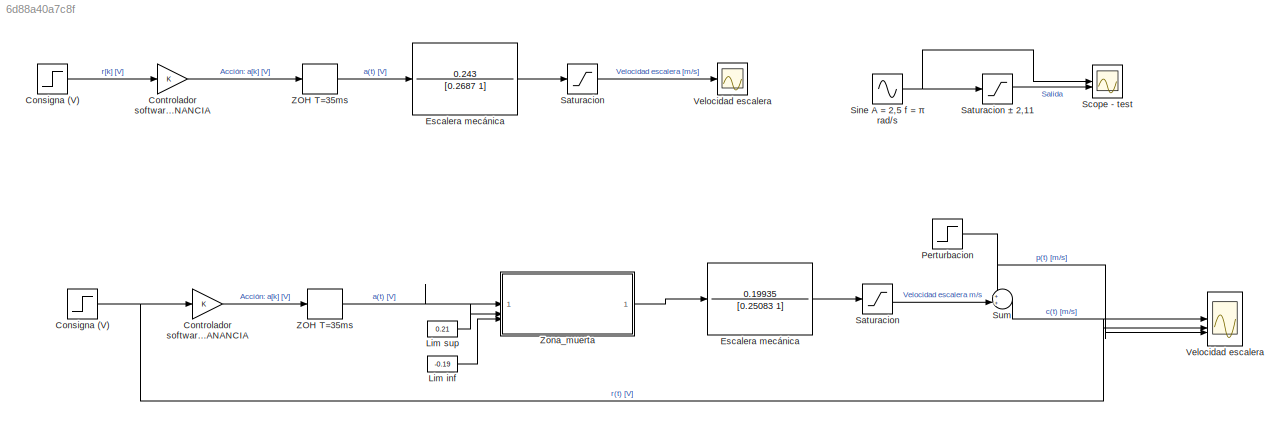
MODEL slx_6d88a40a7c8f
KIND model
CONFIG AbsTol = auto
CONFIG EnableMultiTasking = off
CONFIG FixedStep = auto
CONFIG MaxStep = auto
CONFIG MinStep = auto
CONFIG RelTol = 1e-3
CONFIG SampleTimeConstraint = Unconstrained
CONFIG SolverName = VariableStepAuto
CONFIG StartTime = 0.0
CONFIG StopTime = 5
BLOCK [Step] Consigna (V)
  After = -1
  SampleTime = 0
  Time = 0
BLOCK [Step] Consigna (V) 
  After = 20
  SampleTime = 0
  Time = 0
BLOCK [Gain] Controlador software GANANCIA
BLOCK [Gain] Controlador software GANANCIA  
BLOCK [TransferFcn] Escalera mecánica
  Denominator = [0.25083 1]
  Numerator = 0.19935
BLOCK [TransferFcn] Escalera mecánica 
  Denominator = [0.2687 1]
  Numerator = 0.243
BLOCK [Constant] Lim inf
  Value = -0.19
BLOCK [Constant] Lim sup
  Value = 0.21
BLOCK [Step] Perturbacion
  After = -0.1
  SampleTime = 0
  Time = 2.5
BLOCK [Saturate] Saturacion
  LowerLimit = -2.11
  UpperLimit = 2.11
BLOCK [Saturate] Saturacion 
  LowerLimit = -2.11
  UpperLimit = 2000
BLOCK [Saturate] Saturacion ± 2,11  
  LowerLimit = -2.11
  UpperLimit = 2.11
BLOCK [Scope] Scope - test
  Floating = off
  NumInputPorts = 2
  ScopeSpecificationString = Simulink.scopes.TimeScopeBlockCfg('CurrentConfiguration', extmgr.ConfigurationSet(extmgr.Configuration('Core','General UI',true),extmgr.Configuration('Core','Source UI',true),extmgr.Configuration('Sources','WiredSimulink',true,'DataLoggingVariableName','ScopeData2','DataLoggingSaveFormat','Array'),extmgr.Configuration('Visuals','Time Domain',true,'SerializedDisplays',{struct('MinYLimReal','-3.1248...<+1543ch>
BLOCK [Sin] Sine A = 2,5 f = π rad//s
  Amplitude = 2.5
  Frequency = pi
  SampleTime = 0
BLOCK [Sum] Sum
  Inputs = ++|
BLOCK [Scope] Velocidad escalera
  Floating = off
  NumInputPorts = 3
  ScopeSpecificationString = Simulink.scopes.TimeScopeBlockCfg('CurrentConfiguration', extmgr.ConfigurationSet(extmgr.Configuration('Core','General UI',true),extmgr.Configuration('Core','Source UI',true),extmgr.Configuration('Sources','WiredSimulink',true,'DataLoggingVariableName','salidaEscalonMotor','DataLoggingSaveFormat','Array'),extmgr.Configuration('Visuals','Time Domain',true,'SerializedDisplays',{struct('MinYLimReal',...<+1579ch>
BLOCK [Scope] Velocidad escalera 
  Floating = off
  NumInputPorts = 1
  ScopeSpecificationString = Simulink.scopes.TimeScopeBlockCfg('CurrentConfiguration', extmgr.ConfigurationSet(extmgr.Configuration('Core','General UI',true),extmgr.Configuration('Core','Source UI',true),extmgr.Configuration('Sources','WiredSimulink',true,'DataLogging',true,'DataLoggingVariableName','ScopeData1','DataLoggingSaveFormat','Array'),extmgr.Configuration('Visuals','Time Domain',true,'SerializedDisplays',{struct('Mi...<+1547ch>
BLOCK [ZeroOrderHold] ZOH T=35ms
  SampleTime = 35e-3
BLOCK [ZeroOrderHold] ZOH T=35ms 
  SampleTime = 35e-3
BLOCK [SubSystem] Zona_muerta
  NameLocation = top
  ReferencedSubsystem = Zona_muerta
  ShowPortLabels = FromPortBlockName
LINE Consigna (V) :1 -> Controlador software GANANCIA  :1
NET Consigna (V):1 -> Controlador software GANANCIA:1, Velocidad escalera:2
LINE Controlador software GANANCIA  :1 -> ZOH T=35ms :1
LINE Controlador software GANANCIA:1 -> ZOH T=35ms:1
LINE Escalera mecánica :1 -> Saturacion :1
LINE Escalera mecánica:1 -> Saturacion:1
LINE Lim inf:1 -> Zona_muerta:3
LINE Lim sup:1 -> Zona_muerta:2
NET Perturbacion:1 -> Sum:1, Velocidad escalera:3
LINE Saturacion :1 -> Velocidad escalera :1
LINE Saturacion ± 2,11  :1 -> Scope - test:2
LINE Saturacion:1 -> Sum:2
NET Sine A = 2,5 f = π rad//s:1 -> Saturacion ± 2,11  :1, Scope - test:1
LINE Sum:1 -> Velocidad escalera:1
LINE ZOH T=35ms :1 -> Escalera mecánica :1
LINE ZOH T=35ms:1 -> Zona_muerta:1
LINE Zona_muerta:1 -> Escalera mecánica:1
note: NET lines group one-source signal fan-out (src -> all destinations, sorted); 1:1 wires keep LINE
